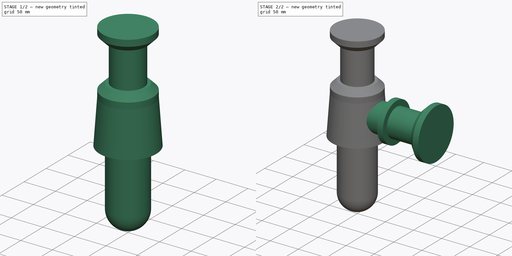
[diagram: build sequence overview — one tinted view per stage of 2, left to right]
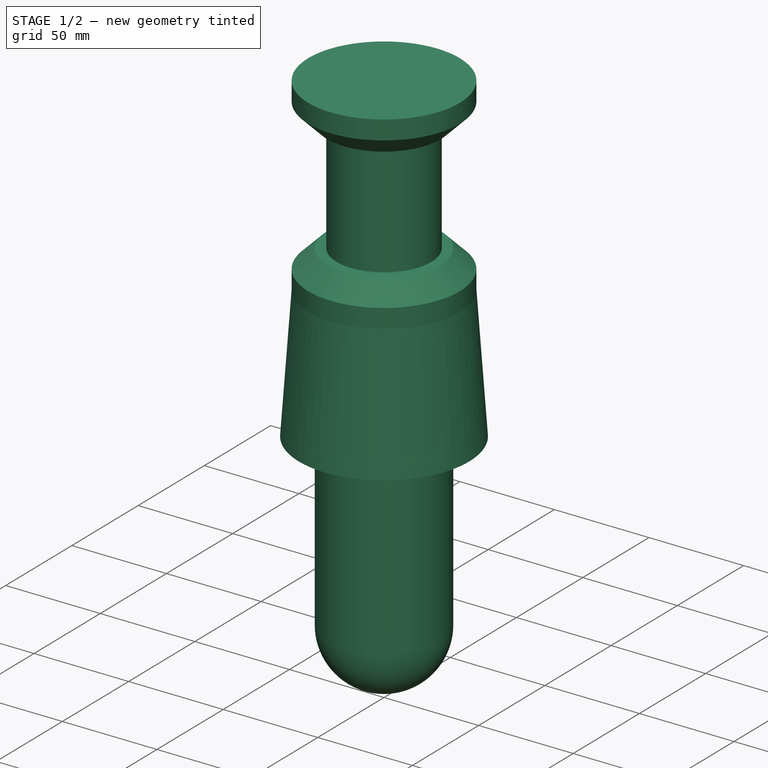
[diagram: stage 1 of 2 — iso view after this stage's code; geometry added in this stage tinted green]
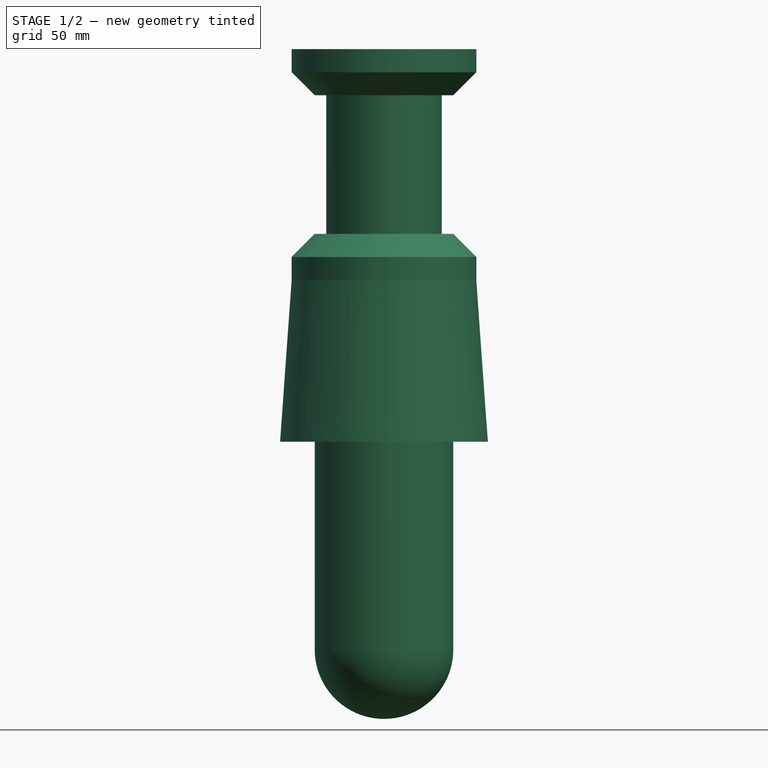
[diagram: stage 1 of 2 — front view after this stage's code; geometry added in this stage tinted green]
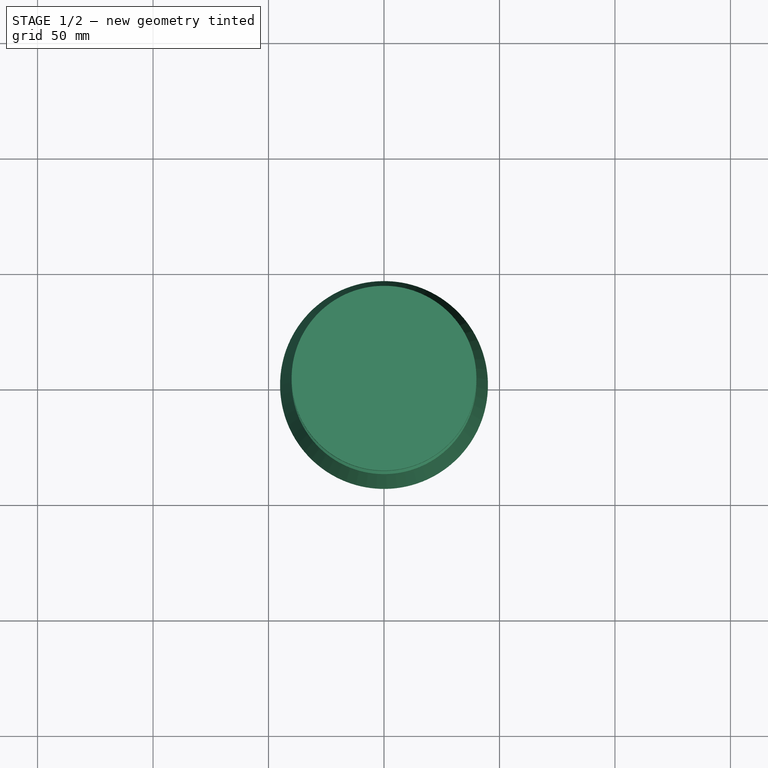
[diagram: stage 1 of 2 — top view after this stage's code; geometry added in this stage tinted green]
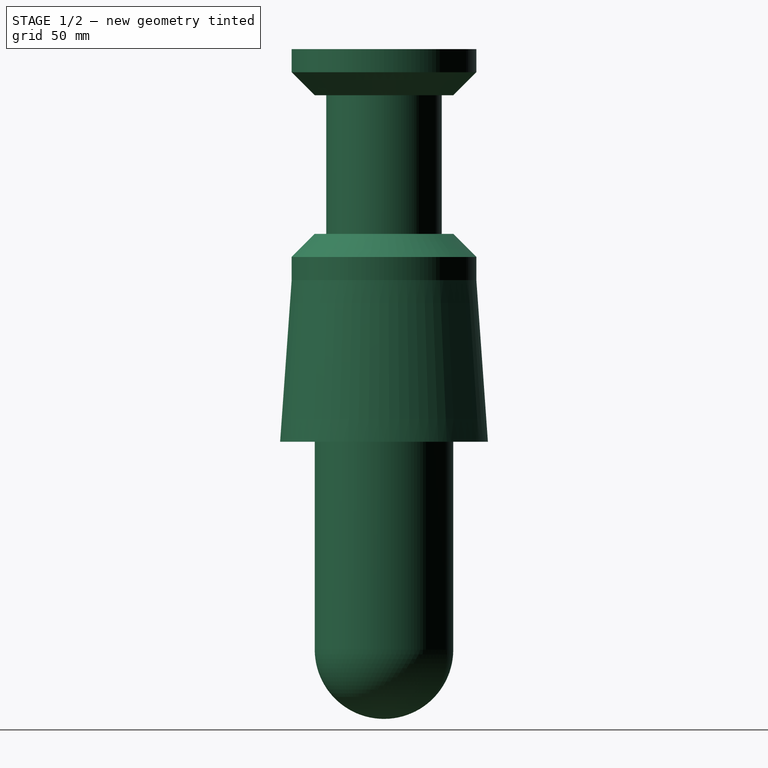
[diagram: stage 1 of 2 — right view after this stage's code; geometry added in this stage tinted green]
FCSTD DOCUMENT  (FreeCAD 0.17R8267 (Git))
Label: Generic siphon
License: CreativeCommons Attribution
LicenseURL: http://creativecommons.org/licenses/by/4.0/
objects: Sketcher::SketchObject×2, PartDesign::Revolution×2, PartDesign::Line×1, PartDesign::Body×1
note: 8 computed .brp shape members not serialized (recipe doc carries the construction recipe); baked Part::Feature solids carry a one-line shape summary decoded from their .brp

FEATURE [Sketcher::SketchObject] Sketch
  MapMode = 5
  Placement = pos=(0,0,0) rot=(1,0,0;1.5708rad)
  Support = -> [XZ_Plane]
  sketch-geometry (13):
    g0: LineSegment StartX=0 StartY=0 StartZ=0 EndX=-40 EndY=0 EndZ=0
    g1: LineSegment StartX=-40 StartY=0 StartZ=0 EndX=-40 EndY=-10 EndZ=0
    g2: LineSegment StartX=-40 StartY=-10 StartZ=0 EndX=-30 EndY=-20 EndZ=0
    g3: LineSegment StartX=-30 StartY=-20 StartZ=0 EndX=-25 EndY=-20 EndZ=0
    g4: LineSegment StartX=-25 StartY=-20 StartZ=0 EndX=-25 EndY=-80 EndZ=0
    g5: LineSegment StartX=-25 StartY=-80 StartZ=0 EndX=-30 EndY=-80 EndZ=0
    g6: LineSegment StartX=-30 StartY=-80 StartZ=0 EndX=-40 EndY=-90 EndZ=0
    g7: LineSegment StartX=-40 StartY=-90 StartZ=0 EndX=-40 EndY=-100 EndZ=0
    g8: LineSegment StartX=-40 StartY=-100 StartZ=0 EndX=-45 EndY=-170 EndZ=0
    g9: LineSegment StartX=-45 StartY=-170 StartZ=0 EndX=-30 EndY=-170 EndZ=0
    g10: LineSegment StartX=-30 StartY=-170 StartZ=0 EndX=-30 EndY=-260 EndZ=0
    g11: ArcOfCircle CenterX=0 CenterY=-260 CenterZ=0 NormalX=0 NormalY=0 NormalZ=1 Radius=30 StartAngle=3.14159 EndAngle=4.71239
    g12: LineSegment StartX=0 StartY=0 StartZ=0 EndX=0 EndY=-290 EndZ=0
  constraints (38):
    c: Coincident(g-1,g0)
    c: PointOnObject(g0,g-1)
    c: Coincident(g0,g1)
    c: Vertical(g1)
    c: Coincident(g1,g2)
    c: Coincident(g2,g3)
    c: Horizontal(g3)
    c: Coincident(g3,g4)
    c: Vertical(g4)
    c: Coincident(g4,g5)
    c: Horizontal(g5)
    c: Coincident(g5,g6)
    c: Coincident(g6,g7)
    c: Vertical(g7)
    c: Coincident(g7,g8)
    c: Coincident(g8,g9)
    c: Horizontal(g9)
    c: Coincident(g9,g10)
    c: Vertical(g10)
    c: Tangent(g10,g11) = -1.5708
    c: PointOnObject(g11,g-2)
    c: PointOnObject(g11,g-2)
    c: DistanceX(g3,g-1) = 25
    c: Angle(g2) = -0.785398
    c: Angle(g6) = -2.35619
    c: DistanceX(g10,g-1) = 30
    c: DistanceY(g4,g4) = 60
    c: DistanceY(g8,g8) = 70
    c: DistanceY(g11,g8) = 120
    c: DistanceY(g1,g1) = 10
    c: DistanceY(g7,g7) = 10
    c: DistanceY(g6,g6) = 10
    c: DistanceY(g2,g2) = 10
    c: DistanceX(g0,g0) = 40
    c: DistanceX(g6,g-1) = 40
    c: DistanceX(g9,g9) = 15
    c: Coincident(g12,g-1)
    c: Coincident(g12,g11)
FEATURE [PartDesign::Revolution] Revolution
  Angle = 360
  Axis = (0,0,1)
  Base = (0,0,0)
  Placement = pos=(0,0,0) rot=(1,0,0;1.5708rad)
  Profile = -> Sketch
  ReferenceAxis = -> Sketch [V_Axis]
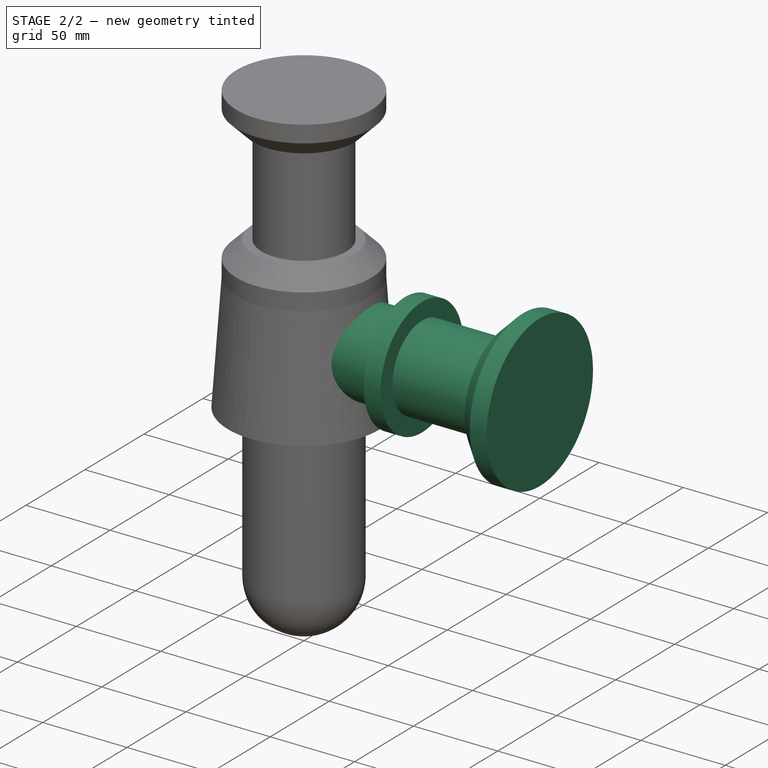
[diagram: stage 2 of 2 — iso view after this stage's code; geometry added in this stage tinted green]
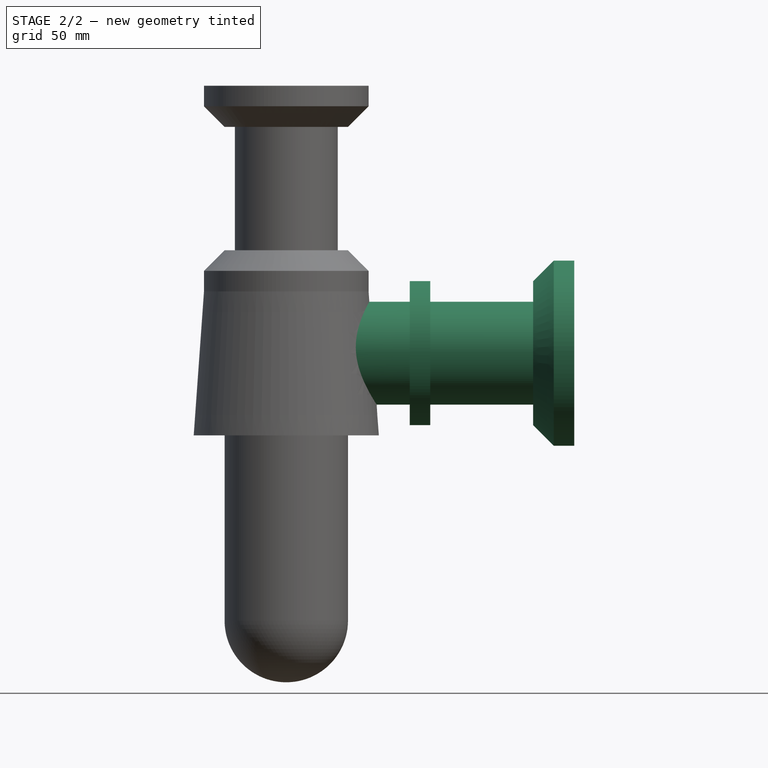
[diagram: stage 2 of 2 — front view after this stage's code; geometry added in this stage tinted green]
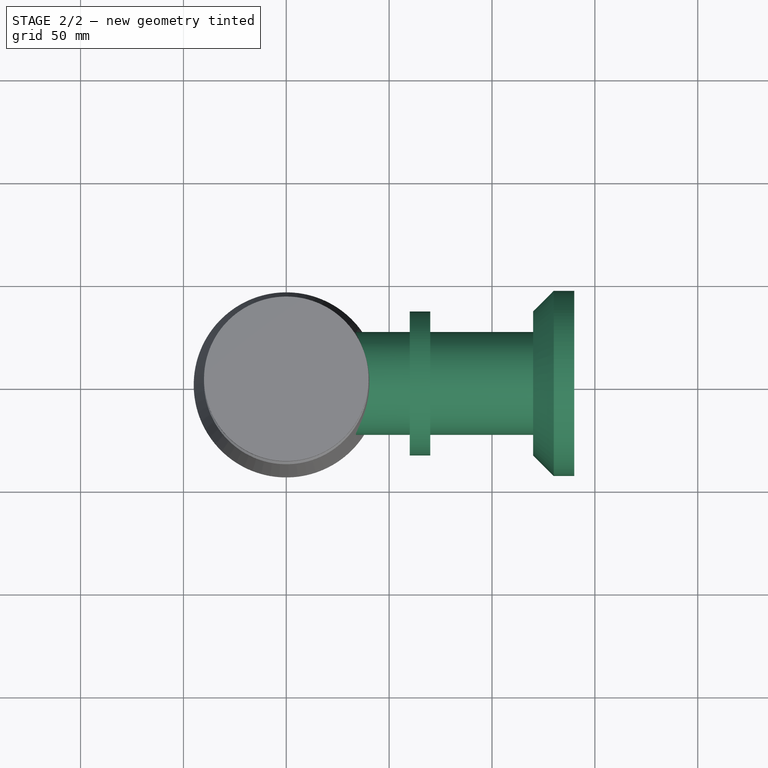
[diagram: stage 2 of 2 — top view after this stage's code; geometry added in this stage tinted green]
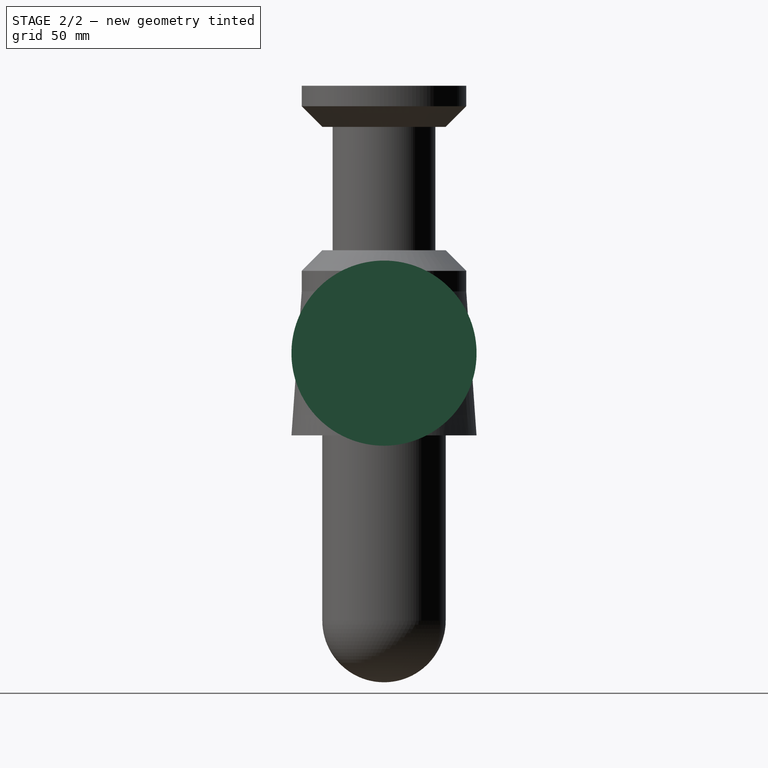
[diagram: stage 2 of 2 — right view after this stage's code; geometry added in this stage tinted green]
FEATURE [Sketcher::SketchObject] Sketch001
  MapMode = 5
  Placement = pos=(0,0,0) rot=(1,0,0;1.5708rad)
  Support = -> [XZ_Plane]
  sketch-geometry (11):
    g0: LineSegment StartX=10 StartY=-130 StartZ=0 EndX=140 EndY=-130 EndZ=0
    g1: LineSegment StartX=140 StartY=-130 StartZ=0 EndX=140 EndY=-85 EndZ=0
    g2: LineSegment StartX=140 StartY=-85 StartZ=0 EndX=130 EndY=-85 EndZ=0
    g3: LineSegment StartX=130 StartY=-85 StartZ=0 EndX=120 EndY=-95 EndZ=0
    g4: LineSegment StartX=120 StartY=-95 StartZ=0 EndX=120 EndY=-105 EndZ=0
    g5: LineSegment StartX=120 StartY=-105 StartZ=0 EndX=70 EndY=-105 EndZ=0
    g6: LineSegment StartX=70 StartY=-105 StartZ=0 EndX=70 EndY=-95 EndZ=0
    g7: LineSegment StartX=70 StartY=-95 StartZ=0 EndX=60 EndY=-95 EndZ=0
    g8: LineSegment StartX=60 StartY=-95 StartZ=0 EndX=60 EndY=-105 EndZ=0
    g9: LineSegment StartX=60 StartY=-105 StartZ=0 EndX=10 EndY=-105 EndZ=0
    g10: LineSegment StartX=10 StartY=-105 StartZ=0 EndX=10 EndY=-130 EndZ=0
  constraints (33):
    c: Horizontal(g0)
    c: Coincident(g0,g1)
    c: Vertical(g1)
    c: Coincident(g1,g2)
    c: Horizontal(g2)
    c: Coincident(g2,g3)
    c: Coincident(g3,g4)
    c: Vertical(g4)
    c: Coincident(g4,g5)
    c: Horizontal(g5)
    c: Coincident(g5,g6)
    c: Vertical(g6)
    c: Coincident(g6,g7)
    c: Horizontal(g7)
    c: Coincident(g7,g8)
    c: Vertical(g8)
    c: Coincident(g8,g9)
    c: Horizontal(g9)
    c: Coincident(g9,g10)
    c: Coincident(g0,g10)
    c: Vertical(g10)
    c: DistanceX(g2,g2) = 10
    c: Angle(g3) = -2.35619
    c: DistanceX(g3,g3) = 10
    c: DistanceY(g4,g4) = 10
    c: DistanceY(g0,g4) = 25
    c: DistanceY(g0,g8) = 25
    c: DistanceY(g6,g6) = 10
    c: DistanceX(g7,g7) = 10
    c: DistanceX(g5,g5) = 50
    c: DistanceX(g9,g9) = 50
    c: DistanceX(g0) = 10
    c: DistanceY(g0) = -130
FEATURE [PartDesign::Line] DatumLine
  AttacherType = Attacher::AttachEngineLine
  MapMode = 29
  Placement = pos=(0,0,-130) rot=(0.57735,0.57735,0.57735;2.0944rad)
  Support = -> [Sketch001]
FEATURE [PartDesign::Revolution] Revolution001
  Angle = 360
  Axis = (1,0,0)
  Base = (0,0,-130)
  BaseFeature = -> Revolution
  Placement = pos=(0,0,0) rot=(1,0,0;1.5708rad)
  Profile = -> Sketch001
  ReferenceAxis = -> DatumLine
  Reversed = true
FEATURE [PartDesign::Body] Body
  Model = -> [Sketch,Revolution,Sketch001,DatumLine,Revolution001]
  Origin = -> BodyOrigin
  Tip = -> Revolution001
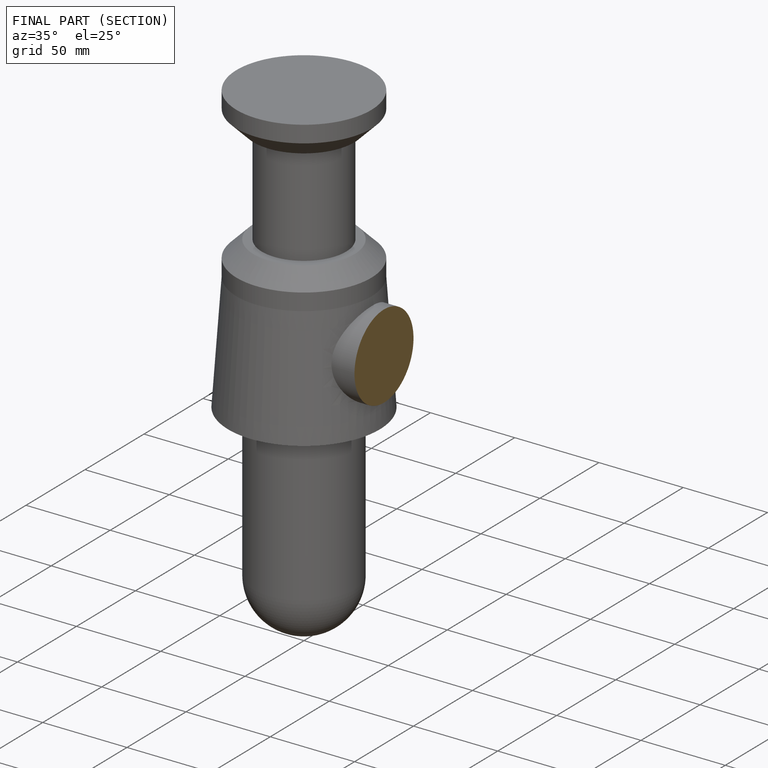
[diagram: finished part — half-section view (interior)]
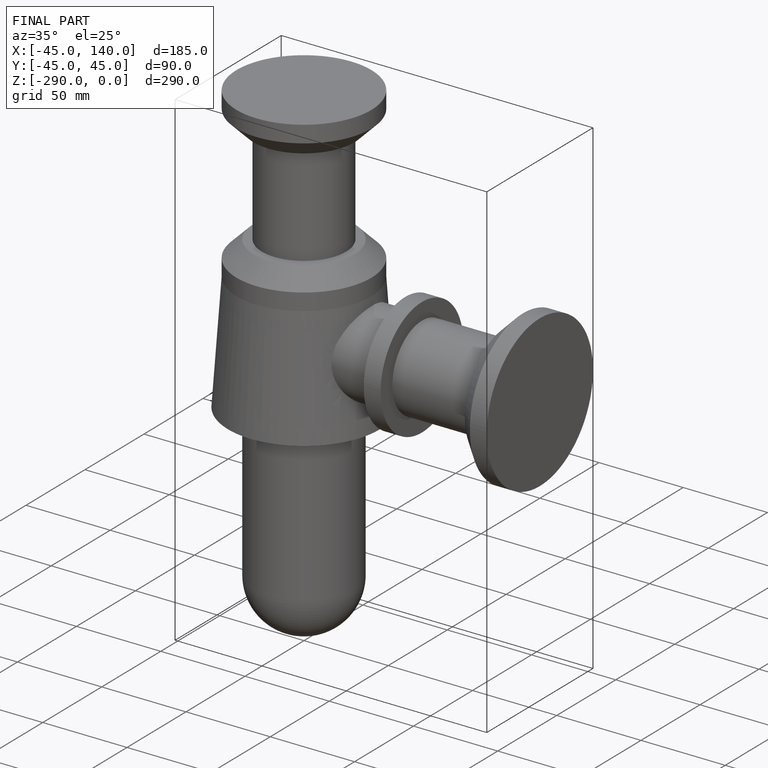
[diagram: finished part — iso view with bounding-box wireframe]
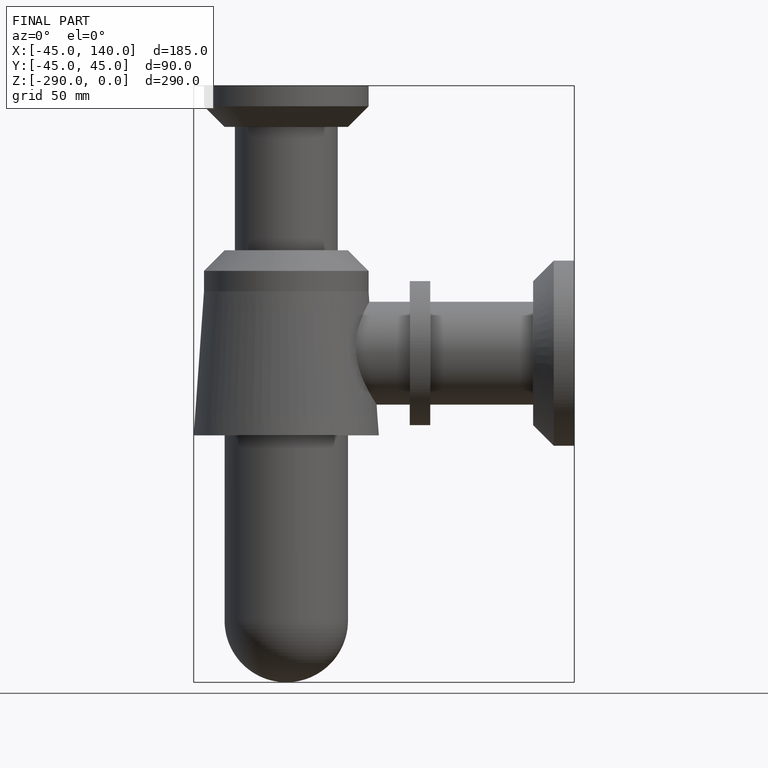
[diagram: finished part — front view with bounding-box wireframe]
